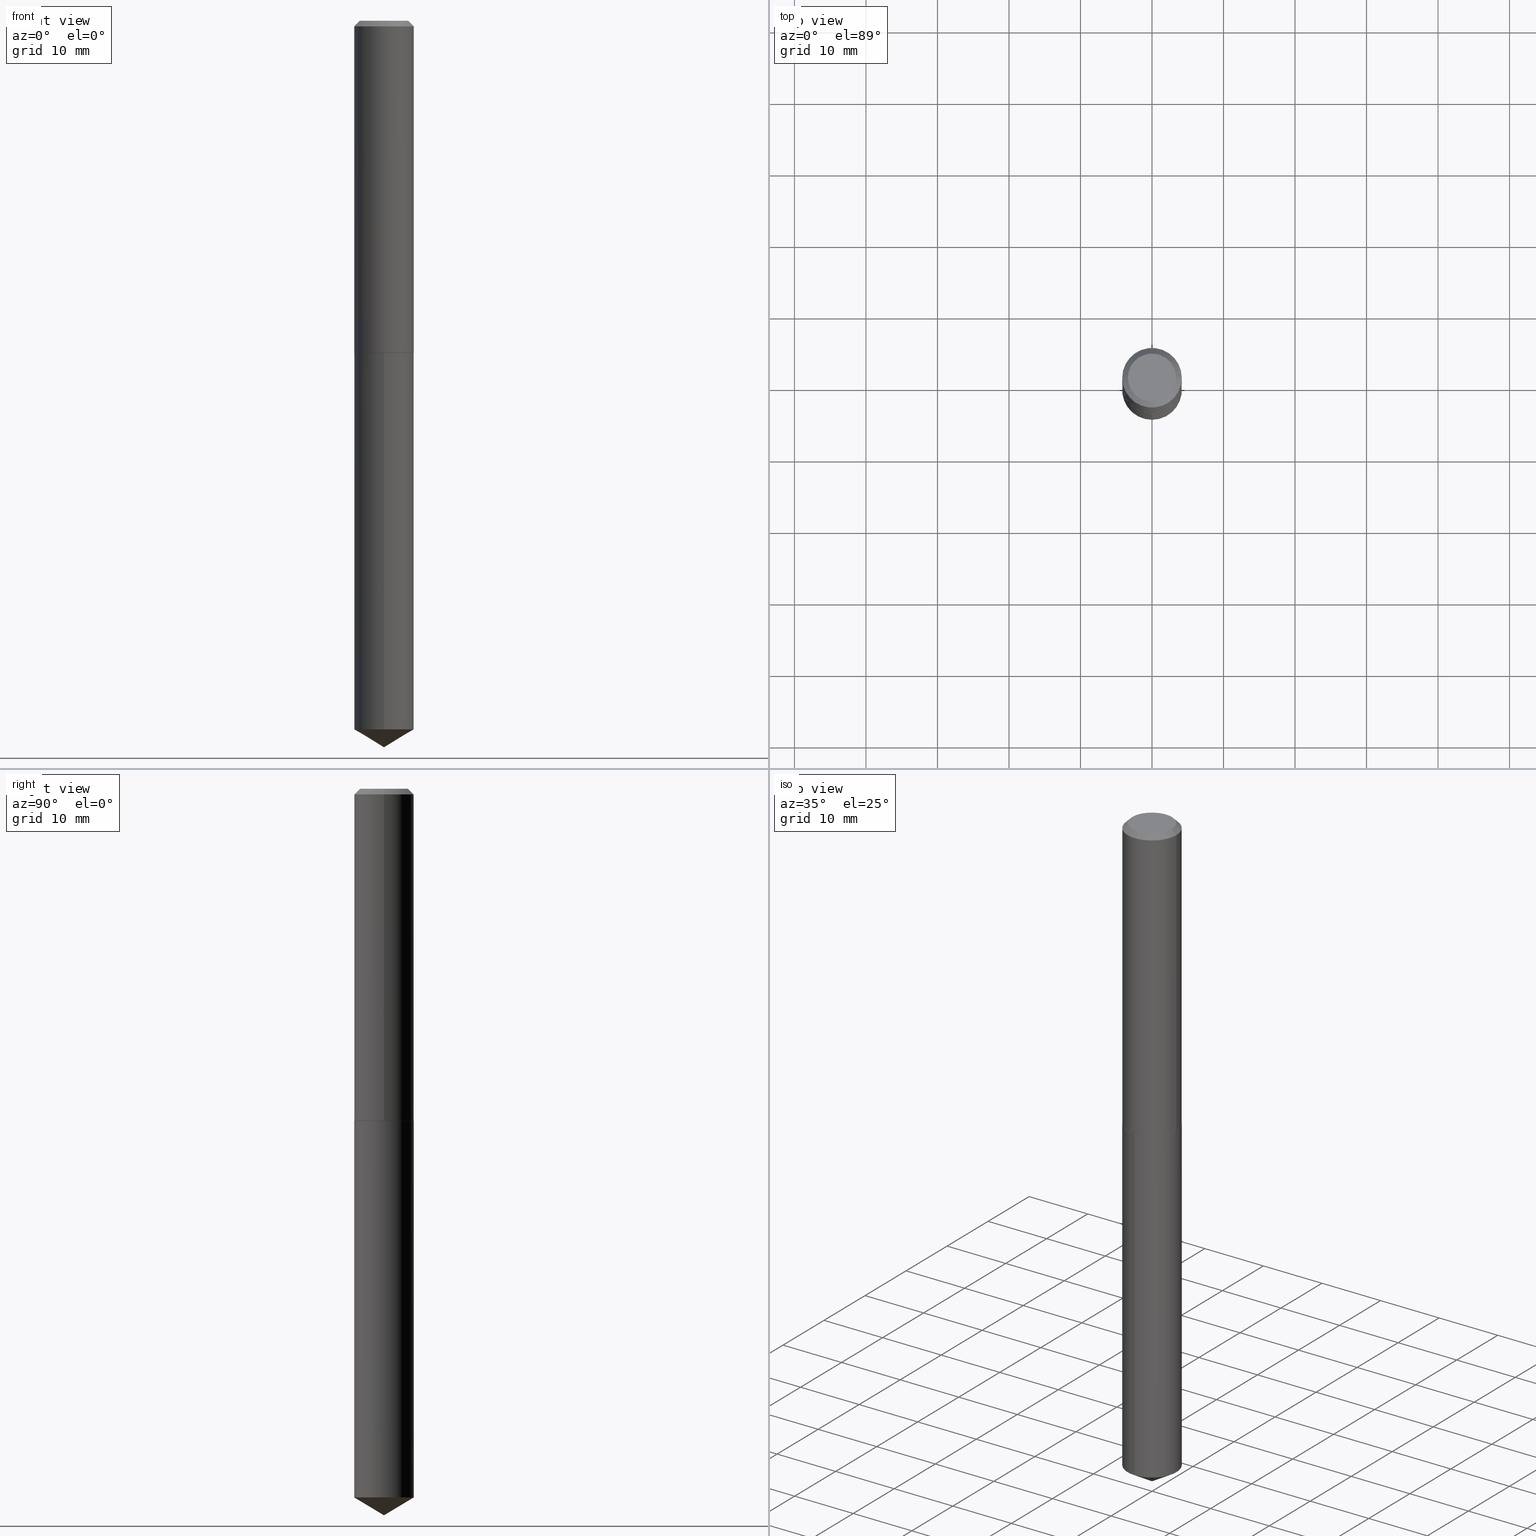
[diagram: canonical four-view strip — front | top / right | iso, engineering-drawing reading convention]
A machine part, canonical four-view strip (front | top / right | iso — engineering-drawing reading convention). The complete STEP part file that produces these views, byte-faithful:
ISO-10303-21;
HEADER;
FILE_DESCRIPTION (( 'STEP AP203' ),
    '1' );
FILE_NAME ('57192.STEP',
    '2024-04-22T23:43:46',
    ( '' ),
    ( '' ),
    'SwSTEP 2.0',
    'SolidWorks 2023',
    '' );
FILE_SCHEMA (( 'CONFIG_CONTROL_DESIGN' ));
ENDSEC;

DATA;
#1 = SHAPE_DEFINITION_REPRESENTATION ( #385, #367 ) ;
#2 = DIRECTION ( 'NONE',  ( -2.445466063798168166E-29, 3.491485266097371711E-15, 1.000000000000000000 ) ) ;
#3 = FACE_OUTER_BOUND ( 'NONE', #359, .T. ) ;
#4 = DATE_AND_TIME ( #137, #87 ) ;
#5 = ORIENTED_EDGE ( 'NONE', *, *, #30, .F. ) ;
#6 = CARTESIAN_POINT ( 'NONE',  ( -1.145555027274387092E-15, -0.1640500000000063852, -1.828099999999999614 ) ) ;
#7 = VECTOR ( 'NONE', #162, 39.37007874015748143 ) ;
#8 = CALENDAR_DATE ( 2024, 22, 4 ) ;
#9 = EDGE_CURVE ( 'NONE', #318, #305, #311, .T. ) ;
#10 = CARTESIAN_POINT ( 'NONE',  ( 0.1640500000000001124, -1.145555027274433043E-15, 7.999368000693238548E-30 ) ) ;
#11 = DIRECTION ( 'NONE',  ( -2.445466063798168166E-29, 3.491485266097371711E-15, 1.000000000000000000 ) ) ;
#12 = AXIS2_PLACEMENT_3D ( 'NONE', #284, #262, #260 ) ;
#13 = EDGE_LOOP ( 'NONE', ( #35, #322, #169 ) ) ;
#14 = CC_DESIGN_PERSON_AND_ORGANIZATION_ASSIGNMENT ( #285, #174, ( #176 ) ) ;
#15 = DIRECTION ( 'NONE',  ( -0.7071067811864026886, 7.493145998869830357E-15, 0.7071067811866923458 ) ) ;
#16 = VERTEX_POINT ( 'NONE', #270 ) ;
#17 = DIRECTION ( 'NONE',  ( -6.982962677686264344E-15, -1.000000000000000000, 3.468864327941557927E-15 ) ) ;
#18 = ADVANCED_FACE ( 'NONE', ( #3 ), #213, .T. ) ;
#19 = PRODUCT_DEFINITION_FORMATION_WITH_SPECIFIED_SOURCE ( 'ANY', '', #83, .NOT_KNOWN. ) ;
#20 = DIRECTION ( 'NONE',  ( -6.982962677686264344E-15, -1.000000000000000000, 3.468864327941557927E-15 ) ) ;
#21 = CONICAL_SURFACE ( 'NONE', #234, 0.1640500000000001957, 0.7853981633972434429 ) ;
#22 = DIRECTION ( 'NONE',  ( 1.000000000000000000, -6.982962677686266711E-15, 0.000000000000000000 ) ) ;
#23 = COORDINATED_UNIVERSAL_TIME_OFFSET ( 5, 0, .BEHIND. ) ;
#24 = VERTEX_POINT ( 'NONE', #164 ) ;
#25 = FACE_OUTER_BOUND ( 'NONE', #13, .T. ) ;
#26 = DIRECTION ( 'NONE',  ( 1.000000000000000000, -6.982962677686266711E-15, 0.000000000000000000 ) ) ;
#27 = COORDINATED_UNIVERSAL_TIME_OFFSET ( 5, 0, .BEHIND. ) ;
#28 = ORIENTED_EDGE ( 'NONE', *, *, #135, .T. ) ;
#29 = EDGE_LOOP ( 'NONE', ( #387, #372, #283, #333 ) ) ;
#30 = EDGE_CURVE ( 'NONE', #223, #76, #80, .T. ) ;
#31 = APPLICATION_CONTEXT ( 'configuration controlled 3d designs of mechanical parts and assemblies' ) ;
#32 = AXIS2_PLACEMENT_3D ( 'NONE', #118, #364, #363 ) ;
#33 = PERSON_AND_ORGANIZATION ( #334, #125 ) ;
#34 = DIRECTION ( 'NONE',  ( 6.090539988449795790E-15, 0.8571673007021165525, 0.5150380749100472721 ) ) ;
#35 = ORIENTED_EDGE ( 'NONE', *, *, #338, .F. ) ;
#36 = ORIENTED_EDGE ( 'NONE', *, *, #117, .F. ) ;
#37 = APPROVAL_ROLE ( '' ) ;
#38 = CARTESIAN_POINT ( 'NONE',  ( 9.540816781861281945E-29, -1.362177404645281331E-14, -3.901428815448529708 ) ) ;
#39 = CARTESIAN_POINT ( 'NONE',  ( -0.1640500000000000291, 1.036446235435583154E-15, -0.03125000000000022898 ) ) ;
#40 = DIRECTION ( 'NONE',  ( 0.000000000000000000, 0.000000000000000000, 1.000000000000000000 ) ) ;
#41 = DIRECTION ( 'NONE',  ( -1.000000000000000000, 6.982962677686266711E-15, 0.000000000000000000 ) ) ;
#42 = APPLICATION_PROTOCOL_DEFINITION ( 'international standard', 'config_control_design', 1994, #300 ) ;
#43 = ADVANCED_FACE ( 'NONE', ( #197 ), #219, .T. ) ;
#44 = CIRCLE ( 'NONE', #188, 0.1327999999999999736 ) ;
#45 = DIRECTION ( 'NONE',  ( -6.982962677686265133E-15, -1.000000000000000000, 3.330506545156066257E-15 ) ) ;
#46 = ADVANCED_FACE ( 'NONE', ( #251 ), #103, .F. ) ;
#47 = AXIS2_PLACEMENT_3D ( 'NONE', #232, #230, #26 ) ;
#48 = ORIENTED_EDGE ( 'NONE', *, *, #255, .F. ) ;
#49 = FACE_OUTER_BOUND ( 'NONE', #236, .T. ) ;
#50 = DIRECTION ( 'NONE',  ( 1.000000000000000000, -6.982962677686266711E-15, 4.876166016891695081E-29 ) ) ;
#51 = DIRECTION ( 'NONE',  ( 1.000000000000000000, -6.982962677686268288E-15, 4.876176775795935793E-29 ) ) ;
#52 = CARTESIAN_POINT ( 'NONE',  ( 9.781864255192672663E-29, -1.396594106438948526E-14, -4.000000000000000000 ) ) ;
#53 = ORIENTED_EDGE ( 'NONE', *, *, #289, .T. ) ;
#54 = CONICAL_SURFACE ( 'NONE', #212, 65.52281426576911372, 1.029744258676658974 ) ;
#55 = CLOSED_SHELL ( 'NONE', ( #18, #261, #328, #46, #207, #342, #68, #273 ) ) ;
#56 = ORIENTED_EDGE ( 'NONE', *, *, #117, .T. ) ;
#57 = DIRECTION ( 'NONE',  ( 1.000000000000000000, -6.982962677686266711E-15, 4.876166016891695081E-29 ) ) ;
#58 = EDGE_LOOP ( 'NONE', ( #5, #112, #326, #233 ) ) ;
#59 = CARTESIAN_POINT ( 'NONE',  ( -7.636830642068754754E-48, 1.090337018703724380E-33, 3.122849337825739237E-19 ) ) ;
#60 = CC_DESIGN_PERSON_AND_ORGANIZATION_ASSIGNMENT ( #178, #295, ( #83 ) ) ;
#61 = ORIENTED_EDGE ( 'NONE', *, *, #383, .F. ) ;
#62 = DIRECTION ( 'NONE',  ( -2.445468806185136877E-29, 3.491481338843145188E-15, 1.000000000000000000 ) ) ;
#63 = CIRCLE ( 'NONE', #114, 0.1640500000000000014 ) ;
#64 = ORIENTED_EDGE ( 'NONE', *, *, #289, .F. ) ;
#65 = CARTESIAN_POINT ( 'NONE',  ( 4.470561524587048986E-29, -6.382777035539155361E-15, -1.828100000000000058 ) ) ;
#66 = DIRECTION ( 'NONE',  ( 1.000000000000000000, -6.982962677686266711E-15, 0.000000000000000000 ) ) ;
#67 = APPROVAL_DATE_TIME ( #366, #299 ) ;
#68 = ADVANCED_FACE ( 'NONE', ( #131 ), #339, .T. ) ;
#69 = LINE ( 'NONE', #10, #225 ) ;
#70 =( GEOMETRIC_REPRESENTATION_CONTEXT ( 3 ) GLOBAL_UNCERTAINTY_ASSIGNED_CONTEXT ( ( #189 ) ) GLOBAL_UNIT_ASSIGNED_CONTEXT ( ( #352, #349, #171 ) ) REPRESENTATION_CONTEXT ( 'NONE', 'WORKASPACE' ) );
#71 = CLOSED_SHELL ( 'NONE', ( #257, #43, #319, #312, #227 ) ) ;
#72 = EDGE_CURVE ( 'NONE', #74, #163, #324, .T. ) ;
#73 = DIRECTION ( 'NONE',  ( -5.985567269335959423E-15, -0.8571673007021127777, 0.5150380749100531563 ) ) ;
#74 = VERTEX_POINT ( 'NONE', #356 ) ;
#75 = DIRECTION ( 'NONE',  ( 1.000000000000000000, -6.982962677686266711E-15, 0.000000000000000000 ) ) ;
#76 = VERTEX_POINT ( 'NONE', #216 ) ;
#77 = DIRECTION ( 'NONE',  ( -2.445468806185136597E-29, 3.491481338843145583E-15, 1.000000000000000000 ) ) ;
#78 = CARTESIAN_POINT ( 'NONE',  ( 4.469338790183955624E-29, -6.381031294869733069E-15, -1.827599999999999891 ) ) ;
#79 = CARTESIAN_POINT ( 'NONE',  ( -0.1640500000000001957, -5.215385936855287718E-15, -1.827599999999999891 ) ) ;
#80 = LINE ( 'NONE', #192, #113 ) ;
#81 = AXIS2_PLACEMENT_3D ( 'NONE', #96, #297, #45 ) ;
#82 = EDGE_CURVE ( 'NONE', #74, #91, #327, .T. ) ;
#83 = PRODUCT ( '57192', '57192', '', ( #215 ) ) ;
#84 = DATE_AND_TIME ( #380, #310 ) ;
#85 = ORIENTED_EDGE ( 'NONE', *, *, #383, .T. ) ;
#86 = ORIENTED_EDGE ( 'NONE', *, *, #167, .F. ) ;
#87 = LOCAL_TIME ( 19, 43, 45.00000000000000000, #27 ) ;
#88 = EDGE_CURVE ( 'NONE', #305, #76, #69, .T. ) ;
#89 = AXIS2_PLACEMENT_3D ( 'NONE', #281, #159, #306 ) ;
#90 = COORDINATED_UNIVERSAL_TIME_OFFSET ( 5, 0, .BEHIND. ) ;
#91 = VERTEX_POINT ( 'NONE', #267 ) ;
#92 = VECTOR ( 'NONE', #34, 39.37007874015748143 ) ;
#93 = CARTESIAN_POINT ( 'NONE',  ( -0.1640500000000000291, -2.079424685339844945E-15, -0.03125000000000022898 ) ) ;
#94 = APPLICATION_PROTOCOL_DEFINITION ( 'international standard', 'config_control_design', 1994, #31 ) ;
#95 = DIRECTION ( 'NONE',  ( 2.445468806185136597E-29, -3.491481338843145583E-15, -1.000000000000000000 ) ) ;
#96 = CARTESIAN_POINT ( 'NONE',  ( 9.540816781861281945E-29, -1.362177404645281331E-14, -3.901428815448529708 ) ) ;
#97 = CONICAL_SURFACE ( 'NONE', #100, 0.1640500000000001957, 0.7853981633972434429 ) ;
#98 = VECTOR ( 'NONE', #151, 39.37007874015748143 ) ;
#99 = CARTESIAN_POINT ( 'NONE',  ( 4.470561524587048986E-29, -6.382777035539155361E-15, -1.828100000000000058 ) ) ;
#100 = AXIS2_PLACEMENT_3D ( 'NONE', #224, #77, #143 ) ;
#101 = CARTESIAN_POINT ( 'NONE',  ( 4.470561524587048986E-29, -6.382777035539155361E-15, -1.828100000000000058 ) ) ;
#102 = DIRECTION ( 'NONE',  ( -2.445466063798168166E-29, 3.491485266097371711E-15, 1.000000000000000000 ) ) ;
#103 = PLANE ( 'NONE',  #346 ) ;
#104 = DIRECTION ( 'NONE',  ( 2.445468806185136597E-29, -3.491481338843145583E-15, -1.000000000000000000 ) ) ;
#105 = DIRECTION ( 'NONE',  ( -2.445468806185136597E-29, 3.491481338843145583E-15, 1.000000000000000000 ) ) ;
#106 = DIRECTION ( 'NONE',  ( -2.445468806185136597E-29, 3.491481338843145583E-15, 1.000000000000000000 ) ) ;
#107 = SECURITY_CLASSIFICATION_LEVEL ( 'unclassified' ) ;
#108 = CC_DESIGN_PERSON_AND_ORGANIZATION_ASSIGNMENT ( #231, #313, ( #160 ) ) ;
#109 = DATE_AND_TIME ( #200, #376 ) ;
#110 = ORIENTED_EDGE ( 'NONE', *, *, #30, .T. ) ;
#111 = EDGE_LOOP ( 'NONE', ( #288, #36 ) ) ;
#112 = ORIENTED_EDGE ( 'NONE', *, *, #351, .F. ) ;
#113 = VECTOR ( 'NONE', #309, 39.37007874015748143 ) ;
#114 = AXIS2_PLACEMENT_3D ( 'NONE', #99, #123, #341 ) ;
#115 = VERTEX_POINT ( 'NONE', #211 ) ;
#116 = VERTEX_POINT ( 'NONE', #323 ) ;
#117 = EDGE_CURVE ( 'NONE', #16, #24, #161, .T. ) ;
#118 = CARTESIAN_POINT ( 'NONE',  ( 4.470561524587048986E-29, -6.382777035539155361E-15, -1.828100000000000058 ) ) ;
#119 = CARTESIAN_POINT ( 'NONE',  ( 0.000000000000000000, 0.000000000000000000, 0.000000000000000000 ) ) ;
#120 = CARTESIAN_POINT ( 'NONE',  ( -0.1640500000000001124, 1.165645358014445154E-15, -8.069513015563179171E-30 ) ) ;
#121 = CARTESIAN_POINT ( 'NONE',  ( 0.1640500000000001957, -7.526586322144166309E-15, -1.827599999999999891 ) ) ;
#122 = EDGE_CURVE ( 'NONE', #318, #150, #271, .T. ) ;
#123 = DIRECTION ( 'NONE',  ( -2.445466063798168166E-29, 3.491485266097371711E-15, 1.000000000000000000 ) ) ;
#124 = CARTESIAN_POINT ( 'NONE',  ( 4.469338790183955624E-29, -6.381031294869733069E-15, -1.827599999999999891 ) ) ;
#125 = ORGANIZATION ( 'UNSPECIFIED', 'UNSPECIFIED', '' ) ;
#126 = AXIS2_PLACEMENT_3D ( 'NONE', #124, #245, #66 ) ;
#127 = FACE_OUTER_BOUND ( 'NONE', #138, .T. ) ;
#128 = CARTESIAN_POINT ( 'NONE',  ( 0.1640500000000001957, -7.526586322144166309E-15, -1.827599999999999891 ) ) ;
#129 = EDGE_CURVE ( 'NONE', #115, #150, #293, .T. ) ;
#130 = CC_DESIGN_SECURITY_CLASSIFICATION ( #160, ( #19 ) ) ;
#131 = FACE_OUTER_BOUND ( 'NONE', #58, .T. ) ;
#132 = VECTOR ( 'NONE', #73, 39.37007874015748854 ) ;
#133 = EDGE_LOOP ( 'NONE', ( #292, #53, #48, #86 ) ) ;
#134 = DIRECTION ( 'NONE',  ( 1.000000000000000000, -6.982962677686265922E-15, 4.876176775795935793E-29 ) ) ;
#135 = EDGE_CURVE ( 'NONE', #116, #91, #146, .T. ) ;
#136 = CARTESIAN_POINT ( 'NONE',  ( -8.649632221956656831E-28, 1.234941159613771964E-13, 35.37007874015748143 ) ) ;
#137 = CALENDAR_DATE ( 2024, 22, 4 ) ;
#138 = EDGE_LOOP ( 'NONE', ( #347, #180 ) ) ;
#139 = CC_DESIGN_APPROVAL ( #299, ( #160 ) ) ;
#140 = ORIENTED_EDGE ( 'NONE', *, *, #246, .F. ) ;
#141 = FACE_OUTER_BOUND ( 'NONE', #29, .T. ) ;
#142 = CC_DESIGN_DATE_AND_TIME_ASSIGNMENT ( #4, #147, ( #160 ) ) ;
#143 = DIRECTION ( 'NONE',  ( 1.000000000000000000, -6.982962677686266711E-15, 0.000000000000000000 ) ) ;
#144 = ORIENTED_EDGE ( 'NONE', *, *, #154, .T. ) ;
#145 = CIRCLE ( 'NONE', #275, 0.1640500000000000291 ) ;
#146 = CIRCLE ( 'NONE', #304, 0.1640500000000000014 ) ;
#147 = DATE_TIME_ROLE ( 'classification_date' ) ;
#148 = DIRECTION ( 'NONE',  ( -2.445466063798168166E-29, 3.491485266097371711E-15, 1.000000000000000000 ) ) ;
#149 = EDGE_CURVE ( 'NONE', #24, #16, #355, .T. ) ;
#150 = VERTEX_POINT ( 'NONE', #93 ) ;
#151 = DIRECTION ( 'NONE',  ( -0.7071067811865454633, 2.468850131082235367E-15, -0.7071067811865495711 ) ) ;
#152 = DIRECTION ( 'NONE',  ( 1.000000000000000000, -6.982962677686269077E-15, 0.000000000000000000 ) ) ;
#153 = CC_DESIGN_APPROVAL ( #357, ( #176 ) ) ;
#154 = EDGE_CURVE ( 'NONE', #163, #74, #248, .T. ) ;
#155 = AXIS2_PLACEMENT_3D ( 'NONE', #194, #307, #20 ) ;
#156 = CARTESIAN_POINT ( 'NONE',  ( 1.165645358014539817E-15, 0.1640499999999864011, -3.901428815448530152 ) ) ;
#157 = MANIFOLD_SOLID_BREP ( 'Body-Move/Copy2[2]', #55 ) ;
#158 = ORIENTED_EDGE ( 'NONE', *, *, #167, .T. ) ;
#159 = DIRECTION ( 'NONE',  ( 2.445466063798167605E-29, -3.491485266097371711E-15, -1.000000000000000000 ) ) ;
#160 = SECURITY_CLASSIFICATION ( '', '', #107 ) ;
#161 = CIRCLE ( 'NONE', #264, 0.1635500000000002230 ) ;
#162 = DIRECTION ( 'NONE',  ( -2.445466063798168166E-29, 3.491485266097371711E-15, 1.000000000000000000 ) ) ;
#163 = VERTEX_POINT ( 'NONE', #156 ) ;
#164 = CARTESIAN_POINT ( 'NONE',  ( 0.1635500000000002230, -7.524840581474745595E-15, -1.828100000000000058 ) ) ;
#165 = CYLINDRICAL_SURFACE ( 'NONE', #263, 0.1640500000000000014 ) ;
#166 = ORIENTED_EDGE ( 'NONE', *, *, #72, .T. ) ;
#167 = EDGE_CURVE ( 'NONE', #24, #305, #272, .T. ) ;
#168 = CYLINDRICAL_SURFACE ( 'NONE', #12, 0.1640500000000001124 ) ;
#169 = ORIENTED_EDGE ( 'NONE', *, *, #154, .F. ) ;
#170 = LINE ( 'NONE', #202, #92 ) ;
#171 =( NAMED_UNIT ( * ) SI_UNIT ( $, .STERADIAN. ) SOLID_ANGLE_UNIT ( ) );
#172 = PERSON_AND_ORGANIZATION_ROLE ( 'creator' ) ;
#173 = VECTOR ( 'NONE', #218, 39.37007874015748143 ) ;
#174 = PERSON_AND_ORGANIZATION_ROLE ( 'creator' ) ;
#175 = ORIENTED_EDGE ( 'NONE', *, *, #135, .F. ) ;
#176 = PRODUCT_DEFINITION ( 'UNKNOWN', '', #19, #184 ) ;
#177 = AXIS2_PLACEMENT_3D ( 'NONE', #221, #335, #186 ) ;
#178 = PERSON_AND_ORGANIZATION ( #334, #125 ) ;
#179 = PERSON_AND_ORGANIZATION ( #334, #125 ) ;
#180 = ORIENTED_EDGE ( 'NONE', *, *, #389, .T. ) ;
#181 = DIRECTION ( 'NONE',  ( -6.982962677686265133E-15, -1.000000000000000000, 3.330506545156066257E-15 ) ) ;
#182 = AXIS2_PLACEMENT_3D ( 'NONE', #119, #40, #243 ) ;
#183 = DIRECTION ( 'NONE',  ( -2.445468806185136877E-29, 3.491481338843145188E-15, 1.000000000000000000 ) ) ;
#184 = DESIGN_CONTEXT ( 'detailed design', #300, 'design' ) ;
#185 = DIRECTION ( 'NONE',  ( -1.000000000000000000, 6.982962677686266711E-15, 0.000000000000000000 ) ) ;
#186 = DIRECTION ( 'NONE',  ( -1.000000000000000000, 6.982962677686265922E-15, -4.876176775795935793E-29 ) ) ;
#187 = CC_DESIGN_DATE_AND_TIME_ASSIGNMENT ( #109, #237, ( #176 ) ) ;
#188 = AXIS2_PLACEMENT_3D ( 'NONE', #345, #315, #57 ) ;
#189 = UNCERTAINTY_MEASURE_WITH_UNIT (LENGTH_MEASURE( 1.000000000000000082E-05 ), #352, 'distance_accuracy_value', 'NONE');
#190 = AXIS2_PLACEMENT_3D ( 'NONE', #242, #95, #41 ) ;
#191 = CYLINDRICAL_SURFACE ( 'NONE', #388, 0.1640500000000001124 ) ;
#192 = CARTESIAN_POINT ( 'NONE',  ( 0.1640500000000000291, -1.234573488373268850E-15, -0.03125000000000022898 ) ) ;
#193 = LINE ( 'NONE', #226, #7 ) ;
#194 = CARTESIAN_POINT ( 'NONE',  ( -8.649632221956656831E-28, 1.234941159613771964E-13, 35.37007874015748143 ) ) ;
#195 = EDGE_CURVE ( 'NONE', #201, #74, #329, .T. ) ;
#196 = FACE_OUTER_BOUND ( 'NONE', #382, .T. ) ;
#197 = FACE_OUTER_BOUND ( 'NONE', #210, .T. ) ;
#198 = DIRECTION ( 'NONE',  ( -6.982962677686265133E-15, -1.000000000000000000, 3.330506545156066257E-15 ) ) ;
#199 = APPROVAL_PERSON_ORGANIZATION ( #179, #299, #209 ) ;
#200 = CALENDAR_DATE ( 2024, 22, 4 ) ;
#201 = VERTEX_POINT ( 'NONE', #52 ) ;
#202 = CARTESIAN_POINT ( 'NONE',  ( 9.781874369830364899E-29, -1.396592670556258397E-14, -4.000000000000000000 ) ) ;
#203 = LENGTH_MEASURE_WITH_UNIT ( LENGTH_MEASURE( 0.02539999999999999897 ), #241 );
#204 = PERSON_AND_ORGANIZATION ( #334, #125 ) ;
#205 = ORIENTED_EDGE ( 'NONE', *, *, #129, .F. ) ;
#206 = VECTOR ( 'NONE', #15, 39.37007874015748143 ) ;
#207 = ADVANCED_FACE ( 'NONE', ( #375 ), #21, .T. ) ;
#208 = DIMENSIONAL_EXPONENTS ( 1.000000000000000000, 0.000000000000000000, 0.000000000000000000, 0.000000000000000000, 0.000000000000000000, 0.000000000000000000, 0.000000000000000000 ) ;
#209 = APPROVAL_ROLE ( '' ) ;
#210 = EDGE_LOOP ( 'NONE', ( #314, #286, #381 ) ) ;
#211 = CARTESIAN_POINT ( 'NONE',  ( -0.1327999999999999736, 9.818918395161595893E-16, 3.122849337758981209E-19 ) ) ;
#212 = AXIS2_PLACEMENT_3D ( 'NONE', #136, #102, #17 ) ;
#213 = CONICAL_SURFACE ( 'NONE', #330, 0.1640500000000000291, 0.7853981633974453924 ) ;
#214 = DIRECTION ( 'NONE',  ( -2.445466063798168166E-29, 3.491485266097371711E-15, 1.000000000000000000 ) ) ;
#215 = MECHANICAL_CONTEXT ( 'NONE', #31, 'mechanical' ) ;
#216 = CARTESIAN_POINT ( 'NONE',  ( 0.1640500000000000291, -1.254663819113281355E-15, -0.03125000000000022898 ) ) ;
#217 = EDGE_CURVE ( 'NONE', #163, #116, #193, .T. ) ;
#218 = DIRECTION ( 'NONE',  ( 0.7071067811864026886, -2.468850131080739687E-15, 0.7071067811866923458 ) ) ;
#219 = CONICAL_SURFACE ( 'NONE', #155, 65.52281426576911372, 1.029744258676658974 ) ;
#220 = PERSON_AND_ORGANIZATION ( #334, #125 ) ;
#221 = CARTESIAN_POINT ( 'NONE',  ( -3.818415321034377377E-48, 5.451685093518621898E-34, 1.561424668912869619E-19 ) ) ;
#222 = DIRECTION ( 'NONE',  ( -6.982962677686265133E-15, -1.000000000000000000, 3.330506545156066257E-15 ) ) ;
#223 = VERTEX_POINT ( 'NONE', #229 ) ;
#224 = CARTESIAN_POINT ( 'NONE',  ( 4.469338790183955624E-29, -6.381031294869733069E-15, -1.827599999999999891 ) ) ;
#225 = VECTOR ( 'NONE', #62, 39.37007874015748143 ) ;
#226 = CARTESIAN_POINT ( 'NONE',  ( 1.165645358014488738E-15, 0.1640499999999935898, -1.828100000000000724 ) ) ;
#227 = ADVANCED_FACE ( 'NONE', ( #196 ), #254, .F. ) ;
#228 = DIRECTION ( 'NONE',  ( -2.445466063798168166E-29, 3.491485266097371711E-15, 1.000000000000000000 ) ) ;
#229 = CARTESIAN_POINT ( 'NONE',  ( 0.1327999999999999736, -1.072823811238664119E-15, 3.122849337895672643E-19 ) ) ;
#230 = DIRECTION ( 'NONE',  ( -2.445468806185136597E-29, 3.491481338843145583E-15, 1.000000000000000000 ) ) ;
#231 = PERSON_AND_ORGANIZATION ( #334, #125 ) ;
#232 = CARTESIAN_POINT ( 'NONE',  ( 7.642090019328607041E-31, -1.091087918388490883E-16, -0.03125000000000022898 ) ) ;
#233 = ORIENTED_EDGE ( 'NONE', *, *, #365, .T. ) ;
#234 = AXIS2_PLACEMENT_3D ( 'NONE', #78, #369, #75 ) ;
#235 = DATE_AND_TIME ( #294, #265 ) ;
#236 = EDGE_LOOP ( 'NONE', ( #321, #144, #386, #175 ) ) ;
#237 = DATE_TIME_ROLE ( 'creation_date' ) ;
#238 = ORIENTED_EDGE ( 'NONE', *, *, #246, .T. ) ;
#239 = PRODUCT_RELATED_PRODUCT_CATEGORY ( 'detail', '', ( #83 ) ) ;
#240 = ORIENTED_EDGE ( 'NONE', *, *, #389, .F. ) ;
#241 =( LENGTH_UNIT ( ) NAMED_UNIT ( * ) SI_UNIT ( $, .METRE. ) );
#242 = CARTESIAN_POINT ( 'NONE',  ( 7.642090019328607041E-31, -1.091087918388490883E-16, -0.03125000000000022898 ) ) ;
#243 = DIRECTION ( 'NONE',  ( 1.000000000000000000, 0.000000000000000000, 0.000000000000000000 ) ) ;
#244 = APPROVAL ( #320, 'UNSPECIFIED' ) ;
#245 = DIRECTION ( 'NONE',  ( -2.445468806185136597E-29, 3.491481338843145583E-15, 1.000000000000000000 ) ) ;
#246 = EDGE_CURVE ( 'NONE', #91, #116, #63, .T. ) ;
#247 = ORIENTED_EDGE ( 'NONE', *, *, #122, .T. ) ;
#248 = CIRCLE ( 'NONE', #81, 0.1640500000000000014 ) ;
#249 = PLANE ( 'NONE',  #177 ) ;
#250 = DIRECTION ( 'NONE',  ( -2.445468806185136597E-29, 3.491481338843145583E-15, 1.000000000000000000 ) ) ;
#251 = FACE_OUTER_BOUND ( 'NONE', #111, .T. ) ;
#252 = APPROVAL_PERSON_ORGANIZATION ( #348, #244, #354 ) ;
#253 = VECTOR ( 'NONE', #183, 39.37007874015748143 ) ;
#254 = PLANE ( 'NONE',  #89 ) ;
#255 = EDGE_CURVE ( 'NONE', #305, #318, #258, .T. ) ;
#256 = DIRECTION ( 'NONE',  ( -2.438088387897960049E-29, 3.491481338843145188E-15, 1.000000000000000000 ) ) ;
#257 = ADVANCED_FACE ( 'NONE', ( #274 ), #371, .T. ) ;
#258 = CIRCLE ( 'NONE', #361, 0.1640500000000001957 ) ;
#259 = AXIS2_PLACEMENT_3D ( 'NONE', #38, #214, #358 ) ;
#260 = DIRECTION ( 'NONE',  ( 1.000000000000000000, -6.982962677686268288E-15, 4.876176775795935793E-29 ) ) ;
#261 = ADVANCED_FACE ( 'NONE', ( #337 ), #191, .T. ) ;
#262 = DIRECTION ( 'NONE',  ( -2.445468806185136597E-29, 3.491481338843145583E-15, 1.000000000000000000 ) ) ;
#263 = AXIS2_PLACEMENT_3D ( 'NONE', #370, #228, #198 ) ;
#264 = AXIS2_PLACEMENT_3D ( 'NONE', #65, #325, #152 ) ;
#265 = LOCAL_TIME ( 19, 43, 45.00000000000000000, #362 ) ;
#266 = APPROVAL_STATUS ( 'not_yet_approved' ) ;
#267 = CARTESIAN_POINT ( 'NONE',  ( -1.145555027274387092E-15, -0.1640500000000063852, -1.828099999999999614 ) ) ;
#268 = COORDINATED_UNIVERSAL_TIME_OFFSET ( 5, 0, .BEHIND. ) ;
#269 = CARTESIAN_POINT ( 'NONE',  ( 4.470561524587048986E-29, -6.382777035539155361E-15, -1.828100000000000058 ) ) ;
#270 = CARTESIAN_POINT ( 'NONE',  ( -0.1635500000000002230, -5.218035164029398130E-15, -1.828100000000000058 ) ) ;
#271 = LINE ( 'NONE', #120, #253 ) ;
#272 = LINE ( 'NONE', #121, #173 ) ;
#273 = ADVANCED_FACE ( 'NONE', ( #127 ), #249, .F. ) ;
#274 = FACE_OUTER_BOUND ( 'NONE', #384, .T. ) ;
#275 = AXIS2_PLACEMENT_3D ( 'NONE', #278, #105, #22 ) ;
#276 = CARTESIAN_POINT ( 'NONE',  ( -0.1640500000000001957, -5.215385936855287718E-15, -1.827599999999999891 ) ) ;
#277 = ORIENTED_EDGE ( 'NONE', *, *, #82, .F. ) ;
#278 = CARTESIAN_POINT ( 'NONE',  ( 7.642090019328607041E-31, -1.091087918388490883E-16, -0.03125000000000022898 ) ) ;
#279 = CC_DESIGN_PERSON_AND_ORGANIZATION_ASSIGNMENT ( #33, #290, ( #19 ) ) ;
#280 = CARTESIAN_POINT ( 'NONE',  ( 2.338274561756857526E-29, -9.436333328549019179E-15, -1.828100000000000058 ) ) ;
#281 = CARTESIAN_POINT ( 'NONE',  ( 4.470561524587048986E-29, -6.382777035539155361E-15, -1.828100000000000058 ) ) ;
#282 = MANIFOLD_SOLID_BREP ( 'Body-Move/Copy2[1]', #71 ) ;
#283 = ORIENTED_EDGE ( 'NONE', *, *, #88, .T. ) ;
#284 = CARTESIAN_POINT ( 'NONE',  ( 0.000000000000000000, 0.000000000000000000, 0.000000000000000000 ) ) ;
#285 = PERSON_AND_ORGANIZATION ( #334, #125 ) ;
#286 = ORIENTED_EDGE ( 'NONE', *, *, #338, .T. ) ;
#287 = AXIS2_PLACEMENT_3D ( 'NONE', #59, #374, #50 ) ;
#288 = ORIENTED_EDGE ( 'NONE', *, *, #149, .F. ) ;
#289 = EDGE_CURVE ( 'NONE', #16, #318, #301, .T. ) ;
#290 = PERSON_AND_ORGANIZATION_ROLE ( 'design_supplier' ) ;
#291 = ORIENTED_EDGE ( 'NONE', *, *, #9, .F. ) ;
#292 = ORIENTED_EDGE ( 'NONE', *, *, #149, .T. ) ;
#293 = LINE ( 'NONE', #39, #98 ) ;
#294 = CALENDAR_DATE ( 2024, 22, 4 ) ;
#295 = PERSON_AND_ORGANIZATION_ROLE ( 'design_owner' ) ;
#296 = CARTESIAN_POINT ( 'NONE',  ( 7.642090019328607041E-31, -1.091087918388490883E-16, -0.03125000000000022898 ) ) ;
#297 = DIRECTION ( 'NONE',  ( -2.445466063798168166E-29, 3.491485266097371711E-15, 1.000000000000000000 ) ) ;
#298 = APPROVAL_PERSON_ORGANIZATION ( #220, #357, #37 ) ;
#299 = APPROVAL ( #266, 'UNSPECIFIED' ) ;
#300 = APPLICATION_CONTEXT ( 'configuration controlled 3d designs of mechanical parts and assemblies' ) ;
#301 = LINE ( 'NONE', #276, #206 ) ;
#302 = ORIENTED_EDGE ( 'NONE', *, *, #88, .F. ) ;
#303 = CC_DESIGN_APPROVAL ( #244, ( #19 ) ) ;
#304 = AXIS2_PLACEMENT_3D ( 'NONE', #269, #2, #181 ) ;
#305 = VERTEX_POINT ( 'NONE', #128 ) ;
#306 = DIRECTION ( 'NONE',  ( 6.982962677686265922E-15, 1.000000000000000000, -3.491485266097371711E-15 ) ) ;
#307 = DIRECTION ( 'NONE',  ( -2.445466063798168166E-29, 3.491485266097371711E-15, 1.000000000000000000 ) ) ;
#308 = CARTESIAN_POINT ( 'NONE',  ( 9.781864255192672663E-29, -1.396594106438948526E-14, -4.000000000000000000 ) ) ;
#309 = DIRECTION ( 'NONE',  ( 0.7071067811865454633, -7.319954787623248157E-15, -0.7071067811865495711 ) ) ;
#310 = LOCAL_TIME ( 19, 43, 45.00000000000000000, #90 ) ;
#311 = CIRCLE ( 'NONE', #126, 0.1640500000000001957 ) ;
#312 = ADVANCED_FACE ( 'NONE', ( #49 ), #165, .T. ) ;
#313 = PERSON_AND_ORGANIZATION_ROLE ( 'classification_officer' ) ;
#314 = ORIENTED_EDGE ( 'NONE', *, *, #195, .F. ) ;
#315 = DIRECTION ( 'NONE',  ( -2.445468806185136597E-29, 3.491481338843145583E-15, 1.000000000000000000 ) ) ;
#316 = APPROVAL_DATE_TIME ( #84, #244 ) ;
#317 = EDGE_LOOP ( 'NONE', ( #350, #247, #61, #302 ) ) ;
#318 = VERTEX_POINT ( 'NONE', #79 ) ;
#319 = ADVANCED_FACE ( 'NONE', ( #25 ), #54, .T. ) ;
#320 = APPROVAL_STATUS ( 'not_yet_approved' ) ;
#321 = ORIENTED_EDGE ( 'NONE', *, *, #217, .F. ) ;
#322 = ORIENTED_EDGE ( 'NONE', *, *, #195, .T. ) ;
#323 = CARTESIAN_POINT ( 'NONE',  ( 1.165645358014539817E-15, 0.1640499999999935898, -1.828100000000000724 ) ) ;
#324 = CIRCLE ( 'NONE', #259, 0.1640500000000000014 ) ;
#325 = DIRECTION ( 'NONE',  ( -2.445468806185136597E-29, 3.491481338843145583E-15, 1.000000000000000000 ) ) ;
#326 = ORIENTED_EDGE ( 'NONE', *, *, #129, .T. ) ;
#327 = LINE ( 'NONE', #6, #377 ) ;
#328 = ADVANCED_FACE ( 'NONE', ( #373 ), #97, .T. ) ;
#329 = LINE ( 'NONE', #308, #132 ) ;
#330 = AXIS2_PLACEMENT_3D ( 'NONE', #296, #104, #185 ) ;
#331 = CIRCLE ( 'NONE', #287, 0.1327999999999999736 ) ;
#332 = CARTESIAN_POINT ( 'NONE',  ( 4.469338790183955624E-29, -6.381031294869733069E-15, -1.827599999999999891 ) ) ;
#333 = ORIENTED_EDGE ( 'NONE', *, *, #365, .F. ) ;
#334 = PERSON ( 'UNSPECIFIED', 'UNSPECIFIED', 'UNSPECIFIED', ('UNSPECIFIED'), ('UNSPECIFIED'), ('UNSPECIFIED') ) ;
#335 = DIRECTION ( 'NONE',  ( 2.438088387897960049E-29, -3.491481338843145188E-15, -1.000000000000000000 ) ) ;
#336 = APPROVAL_STATUS ( 'not_yet_approved' ) ;
#337 = FACE_OUTER_BOUND ( 'NONE', #317, .T. ) ;
#338 = EDGE_CURVE ( 'NONE', #201, #163, #170, .T. ) ;
#339 = CONICAL_SURFACE ( 'NONE', #190, 0.1640500000000000291, 0.7853981633974453924 ) ;
#340 = CARTESIAN_POINT ( 'NONE',  ( 0.000000000000000000, 0.000000000000000000, 0.000000000000000000 ) ) ;
#341 = DIRECTION ( 'NONE',  ( -6.982962677686265133E-15, -1.000000000000000000, 3.330506545156066257E-15 ) ) ;
#342 = ADVANCED_FACE ( 'NONE', ( #141 ), #168, .T. ) ;
#343 = APPROVAL_DATE_TIME ( #235, #357 ) ;
#344 = CIRCLE ( 'NONE', #47, 0.1640500000000000291 ) ;
#345 = CARTESIAN_POINT ( 'NONE',  ( -7.636830642068754754E-48, 1.090337018703724380E-33, 3.122849337825739237E-19 ) ) ;
#346 = AXIS2_PLACEMENT_3D ( 'NONE', #280, #256, #134 ) ;
#347 = ORIENTED_EDGE ( 'NONE', *, *, #351, .T. ) ;
#348 = PERSON_AND_ORGANIZATION ( #334, #125 ) ;
#349 =( NAMED_UNIT ( * ) PLANE_ANGLE_UNIT ( ) SI_UNIT ( $, .RADIAN. ) );
#350 = ORIENTED_EDGE ( 'NONE', *, *, #255, .T. ) ;
#351 = EDGE_CURVE ( 'NONE', #115, #223, #331, .T. ) ;
#352 =( CONVERSION_BASED_UNIT ( 'INCH', #203 ) LENGTH_UNIT ( ) NAMED_UNIT ( #208 ) );
#353 = AXIS2_PLACEMENT_3D ( 'NONE', #101, #11, #222 ) ;
#354 = APPROVAL_ROLE ( '' ) ;
#355 = CIRCLE ( 'NONE', #32, 0.1635500000000002230 ) ;
#356 = CARTESIAN_POINT ( 'NONE',  ( -1.145555027274336999E-15, -0.1640500000000136849, -3.901428815448529264 ) ) ;
#357 = APPROVAL ( #336, 'UNSPECIFIED' ) ;
#358 = DIRECTION ( 'NONE',  ( -6.982962677686265133E-15, -1.000000000000000000, 3.330506545156066257E-15 ) ) ;
#359 = EDGE_LOOP ( 'NONE', ( #240, #110, #85, #205 ) ) ;
#360 = ORIENTED_EDGE ( 'NONE', *, *, #217, .T. ) ;
#361 = AXIS2_PLACEMENT_3D ( 'NONE', #332, #250, #378 ) ;
#362 = COORDINATED_UNIVERSAL_TIME_OFFSET ( 5, 0, .BEHIND. ) ;
#363 = DIRECTION ( 'NONE',  ( 1.000000000000000000, -6.982962677686269077E-15, 0.000000000000000000 ) ) ;
#364 = DIRECTION ( 'NONE',  ( -2.445468806185136597E-29, 3.491481338843145583E-15, 1.000000000000000000 ) ) ;
#365 = EDGE_CURVE ( 'NONE', #150, #76, #145, .T. ) ;
#366 = DATE_AND_TIME ( #8, #368 ) ;
#367 = ADVANCED_BREP_SHAPE_REPRESENTATION ( '57192', ( #282, #157, #182 ), #70 ) ;
#368 = LOCAL_TIME ( 19, 43, 45.00000000000000000, #268 ) ;
#369 = DIRECTION ( 'NONE',  ( -2.445468806185136597E-29, 3.491481338843145583E-15, 1.000000000000000000 ) ) ;
#370 = CARTESIAN_POINT ( 'NONE',  ( 4.470561524587048986E-29, -6.382777035539155361E-15, -1.828100000000000058 ) ) ;
#371 = CYLINDRICAL_SURFACE ( 'NONE', #353, 0.1640500000000000014 ) ;
#372 = ORIENTED_EDGE ( 'NONE', *, *, #9, .T. ) ;
#373 = FACE_OUTER_BOUND ( 'NONE', #133, .T. ) ;
#374 = DIRECTION ( 'NONE',  ( -2.445468806185136597E-29, 3.491481338843145583E-15, 1.000000000000000000 ) ) ;
#375 = FACE_OUTER_BOUND ( 'NONE', #390, .T. ) ;
#376 = LOCAL_TIME ( 19, 43, 45.00000000000000000, #23 ) ;
#377 = VECTOR ( 'NONE', #148, 39.37007874015748143 ) ;
#378 = DIRECTION ( 'NONE',  ( 1.000000000000000000, -6.982962677686266711E-15, 0.000000000000000000 ) ) ;
#379 = CC_DESIGN_PERSON_AND_ORGANIZATION_ASSIGNMENT ( #204, #172, ( #19 ) ) ;
#380 = CALENDAR_DATE ( 2024, 22, 4 ) ;
#381 = ORIENTED_EDGE ( 'NONE', *, *, #72, .F. ) ;
#382 = EDGE_LOOP ( 'NONE', ( #238, #28 ) ) ;
#383 = EDGE_CURVE ( 'NONE', #76, #150, #344, .T. ) ;
#384 = EDGE_LOOP ( 'NONE', ( #166, #360, #140, #277 ) ) ;
#385 = PRODUCT_DEFINITION_SHAPE ( 'NONE', 'NONE',  #176 ) ;
#386 = ORIENTED_EDGE ( 'NONE', *, *, #82, .T. ) ;
#387 = ORIENTED_EDGE ( 'NONE', *, *, #122, .F. ) ;
#388 = AXIS2_PLACEMENT_3D ( 'NONE', #340, #106, #51 ) ;
#389 = EDGE_CURVE ( 'NONE', #223, #115, #44, .T. ) ;
#390 = EDGE_LOOP ( 'NONE', ( #64, #56, #158, #291 ) ) ;
ENDSEC;
END-ISO-10303-21;
